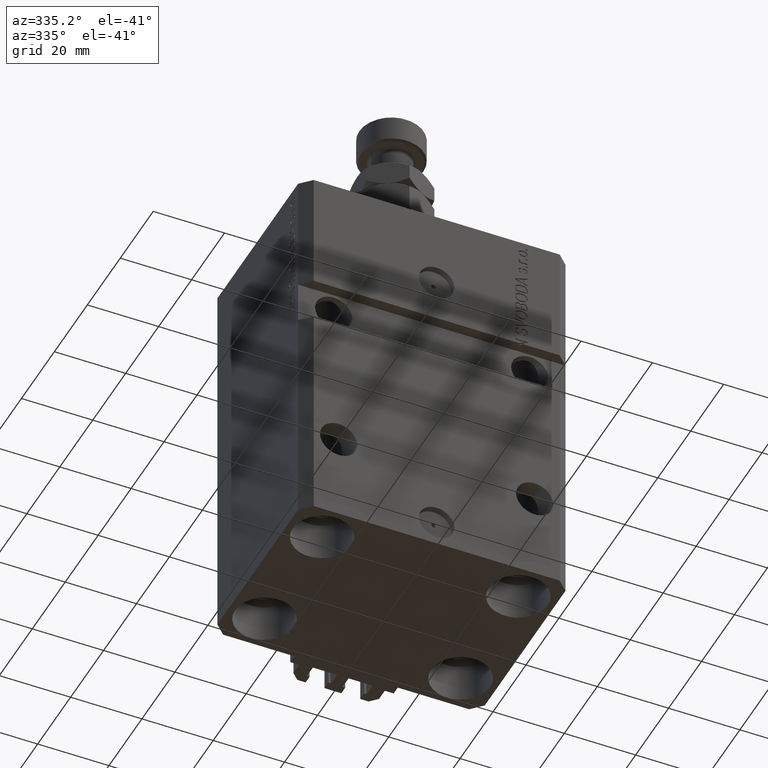
[diagram: clean part render]
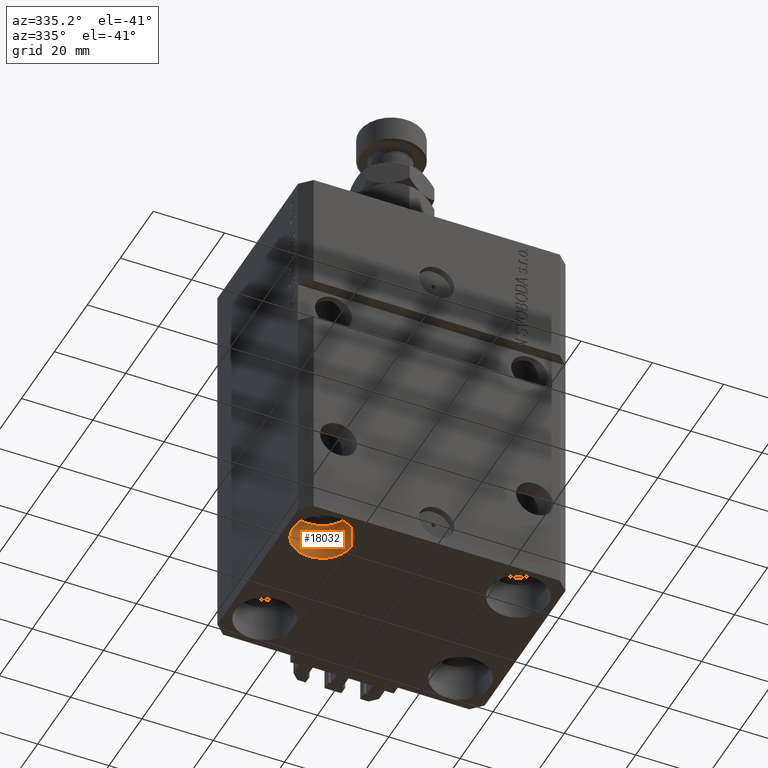
[diagram: same view with one face highlighted and labeled with its STEP entity id]
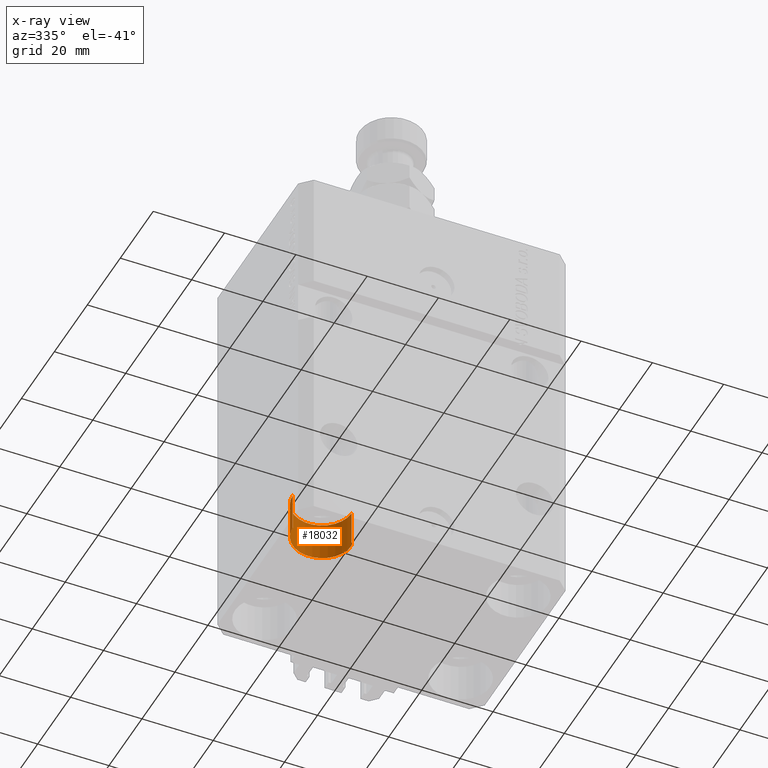
[diagram: x-ray of the same camera — body ghosted, the highlighted face saturated]
A machine part, auxiliary view. The second image highlights one B-rep face of the part: STEP entity #18032.
The next image is the same camera in x-ray: the body ghosted, the highlighted face saturated — about 0% of this face is hidden behind the body in this view.
In plain terms, the highlighted cylindrical surface (edge-blend (fillet) strip) has radius 8.25 mm, axis along (-0, -0, -1).
Its self-contained STEP definition (entity closure, byte-faithful):
#184 = VERTEX_POINT ( 'NONE', #27439 ) ;
#3896 = ORIENTED_EDGE ( 'NONE', *, *, #28863, .F. ) ;
#4944 = VECTOR ( 'NONE', #8150, 1000.000000000000000 ) ;
#8150 = DIRECTION ( 'NONE',  ( -0.000000000000000000, -0.000000000000000000, -1.000000000000000000 ) ) ;
#8832 = CARTESIAN_POINT ( 'NONE',  ( -19.25000000000000355, -17.50000000000000000, -99.00000000000000000 ) ) ;
#11830 = ORIENTED_EDGE ( 'NONE', *, *, #12946, .F. ) ;
#12676 = DIRECTION ( 'NONE',  ( 1.000000000000000000, 0.000000000000000000, 0.000000000000000000 ) ) ;
#12688 = DIRECTION ( 'NONE',  ( -0.000000000000000000, -0.000000000000000000, 1.000000000000000000 ) ) ;
#12946 = EDGE_CURVE ( 'NONE', #34440, #20913, #42169, .T. ) ;
#18032 = ADVANCED_FACE ( 'NONE', ( #21416 ), #35561, .F. ) ;
#20913 = VERTEX_POINT ( 'NONE', #28622 ) ;
#20928 = DIRECTION ( 'NONE',  ( -0.000000000000000000, -0.000000000000000000, -1.000000000000000000 ) ) ;
#21175 = DIRECTION ( 'NONE',  ( -1.000000000000000000, 0.000000000000000000, 0.000000000000000000 ) ) ;
#21416 = FACE_OUTER_BOUND ( 'NONE', #45864, .T. ) ;
#23102 = ORIENTED_EDGE ( 'NONE', *, *, #32571, .T. ) ;
#25918 = VERTEX_POINT ( 'NONE', #32254 ) ;
#27052 = DIRECTION ( 'NONE',  ( 1.000000000000000000, 0.000000000000000000, 0.000000000000000000 ) ) ;
#27092 = ORIENTED_EDGE ( 'NONE', *, *, #30840, .T. ) ;
#27439 = CARTESIAN_POINT ( 'NONE',  ( -35.75000000000000711, -17.50000000000000000, -110.0000000000000000 ) ) ;
#28018 = DIRECTION ( 'NONE',  ( -0.000000000000000000, -0.000000000000000000, 1.000000000000000000 ) ) ;
#28359 = CARTESIAN_POINT ( 'NONE',  ( -27.50000000000000355, -17.50000000000000000, -99.00000000000000000 ) ) ;
#28622 = CARTESIAN_POINT ( 'NONE',  ( -19.25000000000000355, -17.50000000000000000, -110.0000000000000000 ) ) ;
#28704 = CIRCLE ( 'NONE', #42869, 8.250000000000000000 ) ;
#28863 = EDGE_CURVE ( 'NONE', #20913, #184, #38953, .T. ) ;
#30229 = AXIS2_PLACEMENT_3D ( 'NONE', #39433, #28018, #12676 ) ;
#30840 = EDGE_CURVE ( 'NONE', #34440, #25918, #28704, .T. ) ;
#32254 = CARTESIAN_POINT ( 'NONE',  ( -35.75000000000000711, -17.50000000000000000, -99.00000000000000000 ) ) ;
#32276 = AXIS2_PLACEMENT_3D ( 'NONE', #28359, #20928, #21175 ) ;
#32571 = EDGE_CURVE ( 'NONE', #25918, #184, #46767, .T. ) ;
#34440 = VERTEX_POINT ( 'NONE', #8832 ) ;
#34992 = CARTESIAN_POINT ( 'NONE',  ( -27.50000000000000355, -17.50000000000000000, -99.00000000000000000 ) ) ;
#35561 = CYLINDRICAL_SURFACE ( 'NONE', #32276, 8.250000000000000000 ) ;
#38953 = CIRCLE ( 'NONE', #30229, 8.250000000000000000 ) ;
#39433 = CARTESIAN_POINT ( 'NONE',  ( -27.50000000000000355, -17.50000000000000000, -110.0000000000000000 ) ) ;
#42169 = LINE ( 'NONE', #44942, #42363 ) ;
#42363 = VECTOR ( 'NONE', #45181, 1000.000000000000000 ) ;
#42869 = AXIS2_PLACEMENT_3D ( 'NONE', #34992, #12688, #27052 ) ;
#44942 = CARTESIAN_POINT ( 'NONE',  ( -19.25000000000000355, -17.50000000000000000, -99.00000000000000000 ) ) ;
#45181 = DIRECTION ( 'NONE',  ( -0.000000000000000000, -0.000000000000000000, -1.000000000000000000 ) ) ;
#45828 = CARTESIAN_POINT ( 'NONE',  ( -35.75000000000000711, -17.50000000000000000, -99.00000000000000000 ) ) ;
#45864 = EDGE_LOOP ( 'NONE', ( #11830, #27092, #23102, #3896 ) ) ;
#46767 = LINE ( 'NONE', #45828, #4944 ) ;